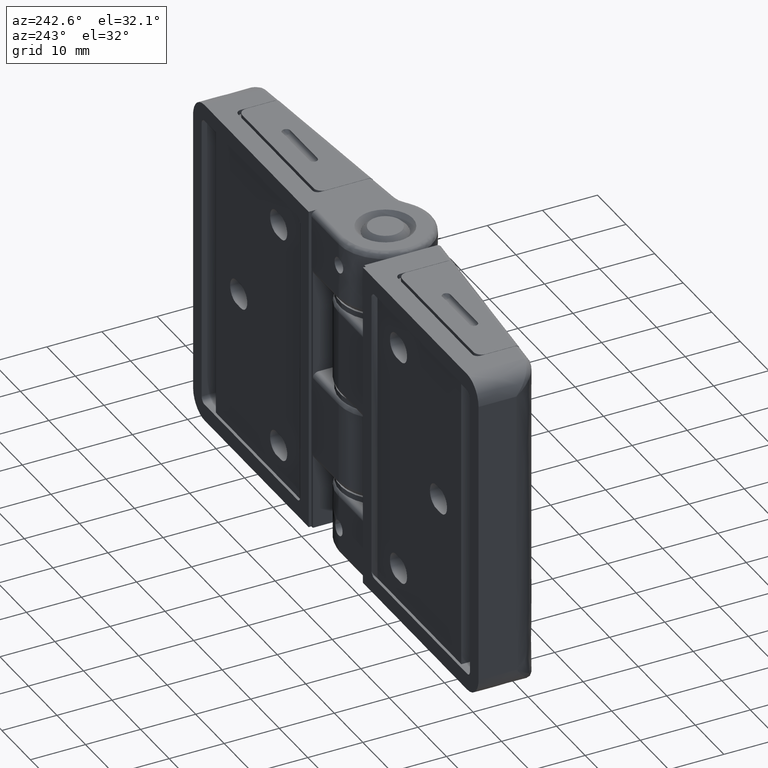
[diagram: clean part render]
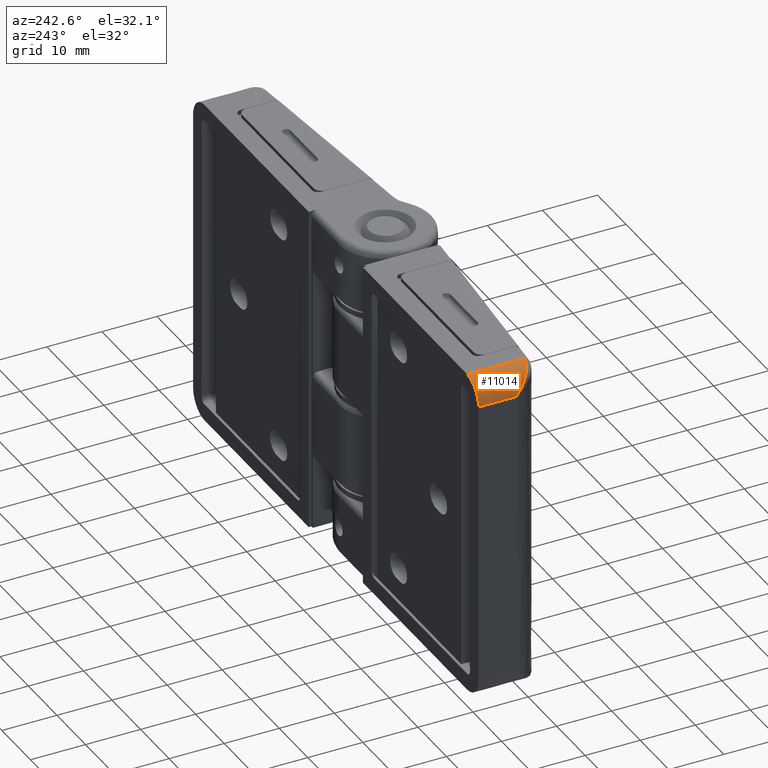
[diagram: same view with one face highlighted and labeled with its STEP entity id]
A machine part, auxiliary view. The second image highlights one B-rep face of the part: STEP entity #11014.
In plain terms, the highlighted face is a freeform B-spline surface patch.
Its self-contained STEP definition (entity closure, byte-faithful):
#7729=CARTESIAN_POINT('',(-46.000007999999902,-1.340611460427780,60.0));
#7730=VERTEX_POINT('',#7729);
#7746=CARTESIAN_POINT('',(-50.000007999999902,2.123489000000000,56.0));
#7747=VERTEX_POINT('',#7746);
#7748=CARTESIAN_POINT('',(-50.000007999999902,2.123489000000000,56.0));
#7749=CARTESIAN_POINT('',(-50.000007999999902,2.122418870016928,56.002128631072537));
#7750=CARTESIAN_POINT('',(-49.999999084425099,2.121348745302532,56.004257251664967));
#7751=CARTESIAN_POINT('',(-49.999996337693482,2.119743551951109,56.007450195045017));
#7752=CARTESIAN_POINT('',(-49.999994620986442,2.118940955478295,56.009046666331457));
#7753=CARTESIAN_POINT('',(-49.999992389268812,2.118138359309829,56.010643137012508));
#7754=CARTESIAN_POINT('',(-49.999990787010439,2.117603295265150,56.011707450665341));
#7755=CARTESIAN_POINT('',(-49.999989722861741,2.117151068568671,56.012098122804858));
#7756=CARTESIAN_POINT('',(-49.999978925193297,2.112983470442335,56.015558183475306));
#7757=CARTESIAN_POINT('',(-49.999963805353410,2.109851626663626,56.019136708521543));
#7758=CARTESIAN_POINT('',(-49.999903247359271,2.100385469075008,56.029810127970052));
#7759=CARTESIAN_POINT('',(-49.999842280259827,2.094319704123872,56.037140743863922));
#7760=CARTESIAN_POINT('',(-49.999597869774782,2.076113639733698,56.059124370465817));
#7761=CARTESIAN_POINT('',(-49.999352860451587,2.064094323634040,56.073881378073047));
#7762=CARTESIAN_POINT('',(-49.998371868420222,2.028042057017783,56.118141690780277));
#7763=CARTESIAN_POINT('',(-49.997389738624442,2.004068201005534,56.147694057389863));
#7764=CARTESIAN_POINT('',(-49.993459334621363,1.932173637403053,56.236312575880049));
#7765=CARTESIAN_POINT('',(-49.989528355677812,1.884320178912135,56.295351650129632));
#7766=CARTESIAN_POINT('',(-49.973794957298317,1.740890973786486,56.472269288029622));
#7767=CARTESIAN_POINT('',(-49.958044077042622,1.645493141509614,56.589920836365962));
#7768=CARTESIAN_POINT('',(-49.895212523753763,1.361382687012905,56.940003425273680));
#7769=CARTESIAN_POINT('',(-49.832615305027353,1.174158227797330,57.170319926913884));
#7770=CARTESIAN_POINT('',(-49.705876162378573,0.896690734957089,57.510355267656813));
#7771=CARTESIAN_POINT('',(-49.658335307883299,0.805223596904645,57.622228113263937));
#7772=CARTESIAN_POINT('',(-49.578808461013047,0.669565301195456,57.787717244426382));
#7773=CARTESIAN_POINT('',(-49.550904024279667,0.624572744530352,57.842529927675052));
#7774=CARTESIAN_POINT('',(-49.492606121643512,0.535582093431512,57.950778683068791));
#7775=CARTESIAN_POINT('',(-49.462181977405017,0.491527644604640,58.004283626581859));
#7776=CARTESIAN_POINT('',(-49.303635668307088,0.273457744094236,58.268671046864164));
#7777=CARTESIAN_POINT('',(-49.156421397466353,0.105992934752178,58.470237551621942));
#7778=CARTESIAN_POINT('',(-48.902009460389763,-0.134109248887478,58.755837857745313));
#7779=CARTESIAN_POINT('',(-48.811572722195052,-0.212283539089709,58.848228643129332));
#7780=CARTESIAN_POINT('',(-48.666673464908463,-0.326557467225875,58.982150389554931));
#7781=CARTESIAN_POINT('',(-48.616718454460511,-0.364223322760806,59.026096101239197));
#7782=CARTESIAN_POINT('',(-48.514577692767439,-0.437786635897623,59.111490073362511));
#7783=CARTESIAN_POINT('',(-48.462305638703512,-0.473759185479103,59.153027158647760));
#7784=CARTESIAN_POINT('',(-48.194832621607667,-0.649536561248740,59.354785190762378));
#7785=CARTESIAN_POINT('',(-47.961533495501349,-0.777226386306437,59.497473989554251));
#7786=CARTESIAN_POINT('',(-47.641929041969568,-0.918744475516863,59.648162476234660));
#7787=CARTESIAN_POINT('',(-47.576456552552663,-0.946179556548804,59.676943862328507));
#7788=CARTESIAN_POINT('',(-47.444119567413061,-0.998524536573689,59.730904446166448));
#7789=CARTESIAN_POINT('',(-47.377094368695630,-1.023511696943384,59.756167653986999));
#7790=CARTESIAN_POINT('',(-47.173418843117993,-1.094904026576411,59.826716116995883));
#7791=CARTESIAN_POINT('',(-47.034176730613517,-1.137749791928445,59.866778166586073));
#7792=CARTESIAN_POINT('',(-46.819871212789117,-1.194675615739468,59.915762237490483));
#7793=CARTESIAN_POINT('',(-46.747527045620650,-1.212424737142309,59.930234525107487));
#7794=CARTESIAN_POINT('',(-46.600951718528158,-1.245402896738762,59.955299583226832));
#7795=CARTESIAN_POINT('',(-46.526573569048061,-1.260652991847429,59.965900247791382));
#7796=CARTESIAN_POINT('',(-46.302794569121957,-1.302092861948575,59.991348718079387));
#7797=CARTESIAN_POINT('',(-46.152145136149720,-1.324141863333029,60.000000000000007));
#7798=CARTESIAN_POINT('',(-46.000007999999902,-1.340611460427780,60.0));
#7799=B_SPLINE_CURVE_WITH_KNOTS('',3,(#7748,#7749,#7750,#7751,#7752,#7753,#7754,#7755,#7756,#7757,#7758,#7759,#7760,#7761,#7762,#7763,#7764,#7765,#7766,#7767,#7768,#7769,#7770,#7771,#7772,#7773,#7774,#7775,#7776,#7777,#7778,#7779,#7780,#7781,#7782,#7783,#7784,#7785,#7786,#7787,#7788,#7789,#7790,#7791,#7792,#7793,#7794,#7795,#7796,#7797,#7798),.UNSPECIFIED.,.F.,.U.,(4,2,1,2,2,2,2,2,2,2,2,2,2,2,2,2,2,2,2,2,2,2,2,2,2,4),(0.0,0.000976562499991,0.001464843749989,0.001708984374987,0.001953124999986,0.003906249999984,0.007812499999984,0.015624999999983,0.031249999999984,0.062499999999986,0.124999999999987,0.249999999999989,0.312499999999991,0.343749999999991,0.374999999999992,0.499999999999994,0.562499999999995,0.593749999999995,0.624999999999994,0.749999999999997,0.781249999999997,0.812499999999997,0.875000000000000,0.906250000000000,0.937500000000000,1.0),.UNSPECIFIED.);
#7800=EDGE_CURVE('',#7747,#7730,#7799,.T.);
#10970=CARTESIAN_POINT('',(-45.965101858006399,-1.599126746938475,59.999847692256687));
#10971=CARTESIAN_POINT('',(-45.965101858006399,9.264978168673466,59.999847692256687));
#10972=CARTESIAN_POINT('',(-50.254413368046912,-1.599126746938476,60.037279946718208));
#10973=CARTESIAN_POINT('',(-50.254413368046912,9.264978168673466,60.037279946718208));
#10974=CARTESIAN_POINT('',(-49.992547193687393,-1.599126746938475,55.755805841860578));
#10975=CARTESIAN_POINT('',(-49.992547193687393,9.264978168673466,55.755805841860578));
#10983=(BOUNDED_SURFACE()B_SPLINE_SURFACE(1,2,((#10970,#10972,#10974),(#10971,#10973,#10975)),.UNSPECIFIED.,.F.,.F.,.U.)B_SPLINE_SURFACE_WITH_KNOTS((2,2),(3,3),(0.0,10.864104915611939),(0.0,6.956997999374964),.UNSPECIFIED.)GEOMETRIC_REPRESENTATION_ITEM()RATIONAL_B_SPLINE_SURFACE(((1.0,0.681998360062499,1.0),(1.0,0.681998360062499,1.0)))REPRESENTATION_ITEM('')SURFACE());
#10984=CARTESIAN_POINT('',(-50.000007999999902,9.0,56.0));
#10985=VERTEX_POINT('',#10984);
#10986=CARTESIAN_POINT('',(-50.000007999999902,2.123489000000000,56.0));
#10987=CARTESIAN_POINT('',(-50.000007999999902,9.0,56.0));
#10988=QUASI_UNIFORM_CURVE('',1,(#10986,#10987),.UNSPECIFIED.,.F.,.U.);
#10989=EDGE_CURVE('',#7747,#10985,#10988,.T.);
#10990=ORIENTED_EDGE('',*,*,#10989,.F.);
#10991=ORIENTED_EDGE('',*,*,#7800,.T.);
#10992=CARTESIAN_POINT('',(-46.000007999999902,9.0,60.0));
#10993=VERTEX_POINT('',#10992);
#10994=CARTESIAN_POINT('',(-46.000007999999902,9.0,60.0));
#10995=CARTESIAN_POINT('',(-46.000007999999902,-1.340611460427780,60.0));
#10996=QUASI_UNIFORM_CURVE('',1,(#10994,#10995),.UNSPECIFIED.,.F.,.U.);
#10997=EDGE_CURVE('',#10993,#7730,#10996,.T.);
#10998=ORIENTED_EDGE('',*,*,#10997,.F.);
#10999=CARTESIAN_POINT('',(-50.000007999999902,9.0,56.0));
#11000=CARTESIAN_POINT('',(-50.000007999999909,9.000000000000002,60.0));
#11001=CARTESIAN_POINT('',(-46.000007999999902,9.0,60.0));
#11009=(BOUNDED_CURVE()B_SPLINE_CURVE(2,(#10999,#11000,#11001),.UNSPECIFIED.,.F.,.U.)CURVE()GEOMETRIC_REPRESENTATION_ITEM()QUASI_UNIFORM_CURVE()RATIONAL_B_SPLINE_CURVE((1.0,0.707106781186548,1.0))REPRESENTATION_ITEM(''));
#11010=EDGE_CURVE('',#10985,#10993,#11009,.T.);
#11011=ORIENTED_EDGE('',*,*,#11010,.F.);
#11012=EDGE_LOOP('',(#10990,#10991,#10998,#11011));
#11013=FACE_OUTER_BOUND('',#11012,.T.);
#11014=ADVANCED_FACE('',(#11013),#10983,.T.);